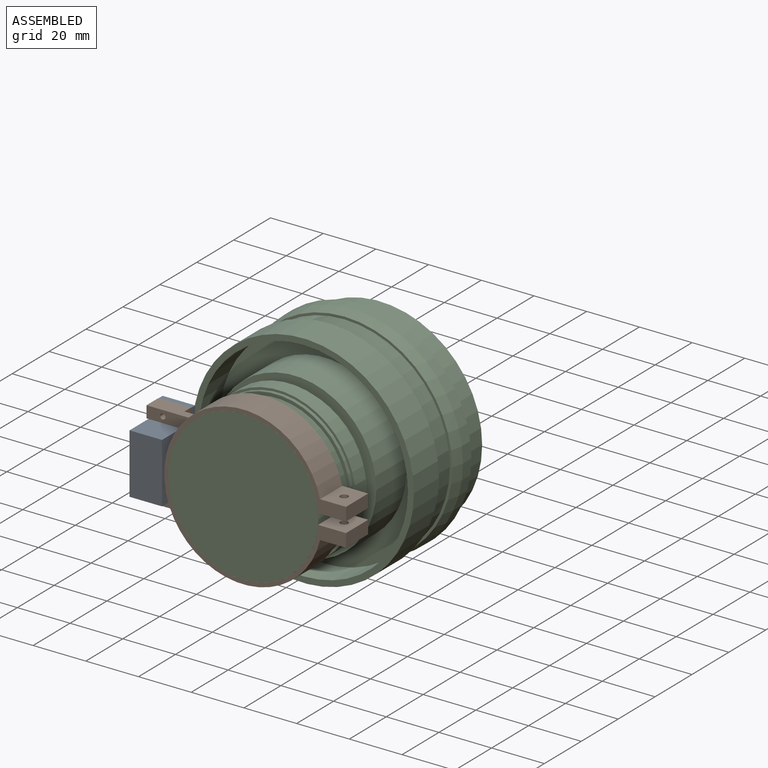
[diagram: assembled view]
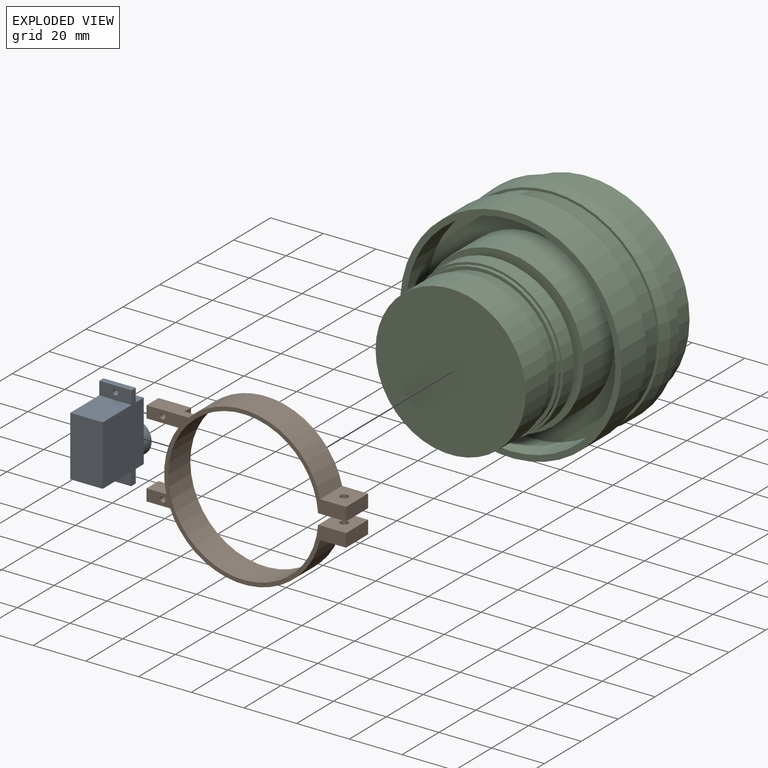
[diagram: exploded view]
GUIDED TOUR — MATED ASSEMBLY (Onshape document 4a1ec7e588569d934a6d5171, AutoMate assembly 4a1ec7e588569d934a6d5171_42fda92aca6d4c366a7ef5a7_23393d2b6d4f049c61383a13_default)

This assembly has 3 components, labeled P0..P2 below (a component is one placed occurrence of a part; the same part can appear more than once), held together by 1 mate. A mate is a constraint between two components; its type names the relative motion it leaves free:
  FASTENED — locks the two components together rigidly (no relative motion).
Axis/direction vectors are unit vectors and 'through' points are millimeter coordinates, both in the assembly's world frame.

MATES
  1. FASTENED "Fastened 1": P2 <-> P1, direction (0.000, -1.000, 0.000) through (-35.02, -70.36, -46.48) mm

ASSEMBLY ORDER
  1. P1 — the base component [order heuristic]
  2. P2 — core [order heuristic]
  3. P0 [order verified]
Order-tag legend:
  [order verified] — this step's position reverses a verified removal order: the component was checked to insert without passing through the ones already placed.
  [order heuristic] — the first 2 components form the assembly's core: parts whose collision-free extraction could not be verified, listed in mate-graph order.

Of the 3 components, 1 carries the full construction recipe — the FeatureScript program that regenerates the part's solid from scratch; the rest are supplied as boundary geometry only.
Each toured component is shown spotlighted twice — in the assembled view, then in the exploded view, where a leader line traces a displaced component back to its assembled socket (saturated green if recipe-attached, orange if geometry-only; every other component desaturated gray) — followed by its recipe or geometry summary and the mates that hold it.
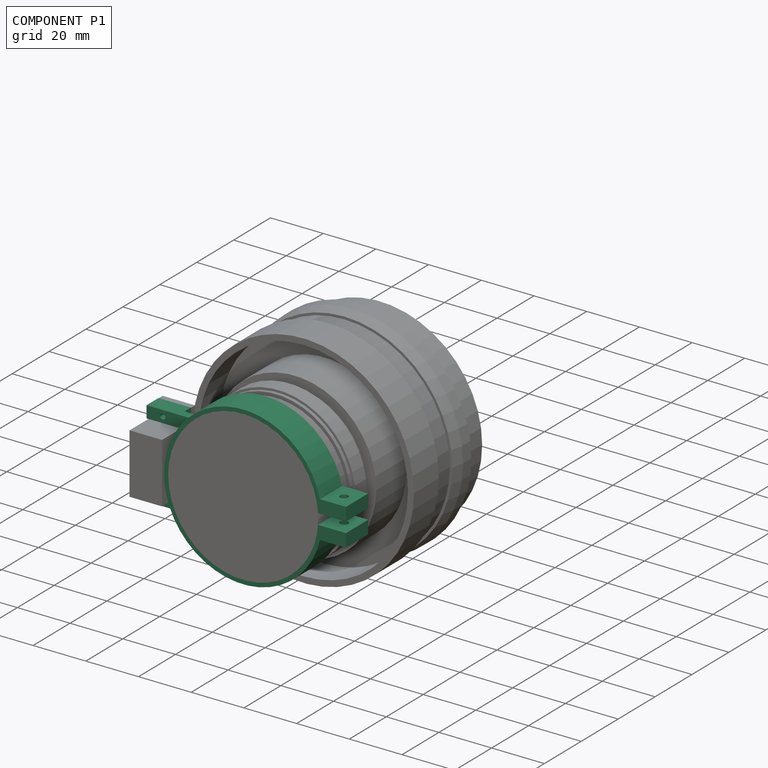
[diagram: component P1 — assembled]
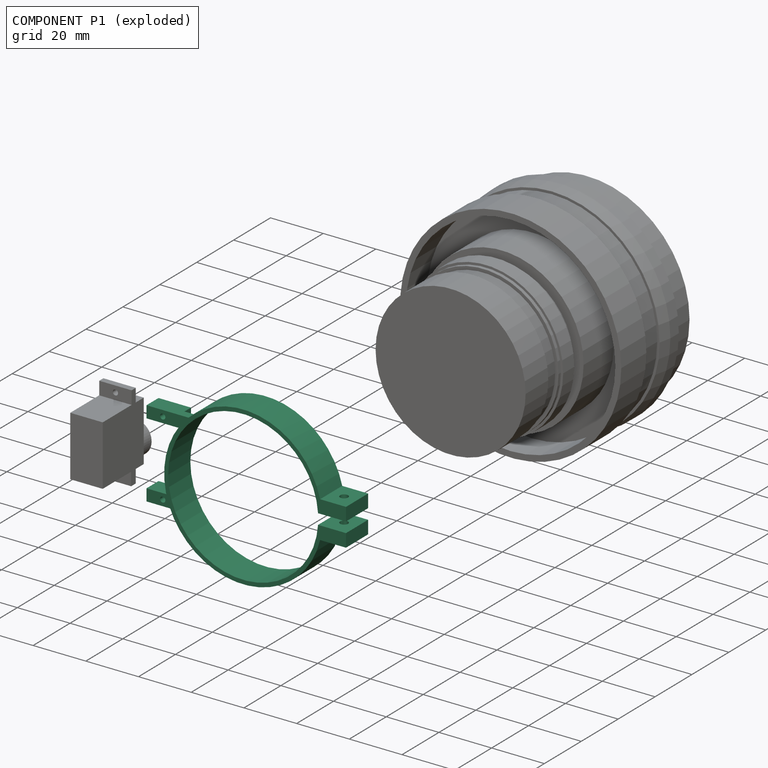
[diagram: component P1 — exploded]
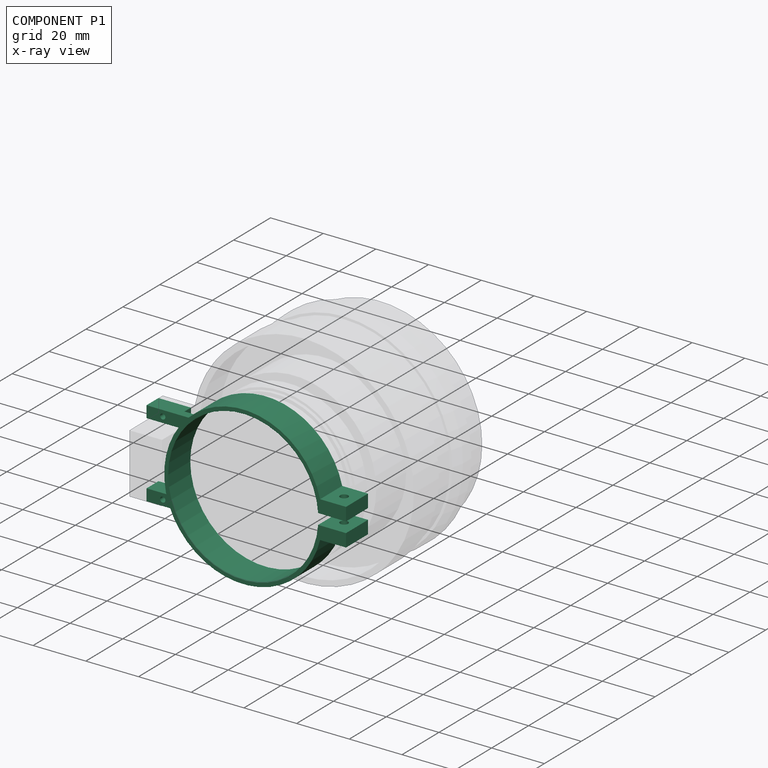
[diagram: component P1 — x-ray view]
COMPONENT P1 — recipe-attached (CADFS 00351403, mesh-verified: the recipe's output STEP matches this component's geometry to below the mesh-comparison resolution (tessellation chordal tolerance ~0.154 mm)).
Held by: FASTENED mate "Fastened 1" to P2.
Construction recipe (FeatureScript — the CAD program that rebuilds this solid; sketch coordinates are in the units given by the * unit suffixes, e.g. mm):

FeatureScript 1511;
import(path : "onshape/std/geometry.fs", version : "1511.0");
import(path : "onshape/std/common.fs", version : "1511.0");
const mm = millimeter;
const VERTEX = EntityType.VERTEX;
const EDGE = EntityType.EDGE;
const FACE = EntityType.FACE;
const BODY = EntityType.BODY;
function v(x, y){return vector(x, y);}
function OD(order){return orderDisambiguation(order);}
function OSD(set){return originalSetDisambiguation(set);}
function TD(topology){return topologyDisambiguation(topology);}
function TDD(query){return trueDependencyDisambiguation(query);}
function sQuery(a, b, c) {return sketchEntityQuery(a, b, c);}

annotation { "Feature Type Name" : "Feature", "Feature Type Description" : "" }
export const myFeature = defineFeature(function(context is Context, id is Id, definition is map)
    precondition{}
    {
        {
            var Q0;
            Q0=qCreatedBy(makeId("Front.planeOp"),FACE);
            var sketch = newSketch(context, id + "F0", { "sketchPlane" : qUnion([Q0])});
            skCircle(sketch, "E0", {"center": v(0, 0) * mm, "radius": 28.48 * mm});
            skCircle(sketch, "E1", {"center": v(0, 0) * mm, "radius": 30 * mm});
            skLineSegment(sketch, "E2", {"start": v(30, 0) * mm, "end": v(39, 0) * mm});
            skLineSegment(sketch, "E3", {"start": v(39, 0) * mm, "end": v(39, -7) * mm});
            skLineSegment(sketch, "E4", {"start": v(39, -7) * mm, "end": v(29.17, -7) * mm});
            skLineSegment(sketch, "E5", {"start": v(39, 0) * mm, "end": v(39, 7) * mm});
            skLineSegment(sketch, "E6", {"start": v(39, 7) * mm, "end": v(29.17, 7) * mm});
            skSolve(sketch);
        }
        {
            var Q0;
            Q0 = qSketchRegion(id + "F0", true);
            extrude(context, id + "F1", {"entities" : qUnion([Q0]), "depth" : 12 * mm});
        }
        {
            var Q0;
            Q0=makeQuery(id+"F1.opExtrude","CAP_FACE",FACE,{"disambiguationData":[OSD([sQuery(id+"F0.wireOp",EDGE,"E0"),sQuery(id+"F0.wireOp",EDGE,"E1"),sQuery(id+"F0.wireOp",EDGE,"E3"),sQuery(id+"F0.wireOp",EDGE,"E4"),sQuery(id+"F0.wireOp",EDGE,"E5"),sQuery(id+"F0.wireOp",EDGE,"E6")])],"isStart":false});
            var sketch = newSketch(context, id + "F2", { "sketchPlane" : qUnion([Q0])});
            skLineSegment(sketch, "E7.bottom", {"start": v(44.15, 2) * mm, "end": v(24.16, 2) * mm});
            skLineSegment(sketch, "E7.top", {"start": v(44.15, -2) * mm, "end": v(24.16, -2) * mm});
            skLineSegment(sketch, "E7.left", {"start": v(44.15, 2) * mm, "end": v(44.15, -2) * mm});
            skLineSegment(sketch, "E7.right", {"start": v(24.16, 2) * mm, "end": v(24.16, -2) * mm});
            skPoint(sketch, "E7.middle", {"position": v(34.16, 0) * mm});
            skSolve(sketch);
        }
        {
            var Q0;
            Q0 = qSketchRegion(id + "F2", true);
            extrude(context, id + "F3", {"entities" : qUnion([Q0]), "operationType" : NewBodyOperationType.REMOVE, "oppositeDirection" : true, "depth" : 25 * mm});
        }
        {
            var Q0;
            Q0=makeQuery(id+"F1.opExtrude","SWEPT_FACE",FACE,{"disambiguationData":[OSD([sQuery(id+"F0.wireOp",EDGE,"E4")])]});
            var sketch = newSketch(context, id + "F4", { "sketchPlane" : qUnion([Q0])});
            skLineSegment(sketch, "E8", {"start": v(39, 12) * mm, "end": v(39, 0) * mm, "construction": true});
            skLineSegment(sketch, "E9", {"start": v(39, 0) * mm, "end": v(29.17, 0) * mm, "construction": true});
            skLineSegment(sketch, "E10", {"start": v(29.17, 0) * mm, "end": v(29.17, 12) * mm, "construction": true});
            skLineSegment(sketch, "E11", {"start": v(29.17, 12) * mm, "end": v(39, 12) * mm, "construction": true});
            skLineSegment(sketch, "E12", {"start": v(39, 12) * mm, "end": v(29.17, 0) * mm, "construction": true});
            skLineSegment(sketch, "E13", {"start": v(29.17, 12) * mm, "end": v(39, 0) * mm, "construction": true});
            skCircle(sketch, "E14", {"center": v(34.09, 6) * mm, "radius": 1.5 * mm});
            skSolve(sketch);
        }
        {
            var Q0;
            Q0 = qSketchRegion(id + "F4", true);
            extrude(context, id + "F5", {"entities" : qUnion([Q0]), "operationType" : NewBodyOperationType.REMOVE, "oppositeDirection" : true, "depth" : 25 * mm});
        }
        {
            var Q0;
            Q0=makeQuery(id+"F1.opExtrude","CAP_FACE",FACE,{"disambiguationData":[OSD([sQuery(id+"F0.wireOp",EDGE,"E0"),sQuery(id+"F0.wireOp",EDGE,"E1"),sQuery(id+"F0.wireOp",EDGE,"E3"),sQuery(id+"F0.wireOp",EDGE,"E4"),sQuery(id+"F0.wireOp",EDGE,"E5"),sQuery(id+"F0.wireOp",EDGE,"E6")])],"isStart":false});
            var sketch = newSketch(context, id + "F6", { "sketchPlane" : qUnion([Q0])});
            skLineSegment(sketch, "E15", {"start": v(-30, 0) * mm, "end": v(-43, 0) * mm});
            skPoint(sketch, "E15.endSnap0", {"position": v(-30, 0) * mm});
            skLineSegment(sketch, "E16", {"start": v(-43, 0) * mm, "end": v(-43, 16.5) * mm});
            skLineSegment(sketch, "E17", {"start": v(-43, 16.5) * mm, "end": v(-25.05, 16.5) * mm});
            skLineSegment(sketch, "E18", {"start": v(-25.05, 16.5) * mm, "end": v(-43, 16.5) * mm});
            skLineSegment(sketch, "E19", {"start": v(-43, 0) * mm, "end": v(-43, -16.5) * mm});
            skLineSegment(sketch, "E20", {"start": v(-43, -16.5) * mm, "end": v(-25.05, -16.5) * mm});
            skLineSegment(sketch, "E21", {"start": v(-25.05, 16.5) * mm, "end": v(-23.2, 16.5) * mm});
            skLineSegment(sketch, "E22", {"start": v(-25.05, -16.5) * mm, "end": v(-23.2, -16.5) * mm});
            skArc(sketch, "E23", {"start": v(-23.2, 16.5) * mm, "mid": v(-28.6, 0) * mm, "end": v(-23.2, -16.5) * mm});
            skSolve(sketch);
        }
        {
            var Q0;
            Q0 = qSketchRegion(id + "F6", true);
            extrude(context, id + "F7", {"entities" : qUnion([Q0]), "operationType" : NewBodyOperationType.ADD, "oppositeDirection" : true, "depth" : 3 * mm});
        }
        {
            var Q0;
            Q0=makeQuery(id+"F7.boolean.opBoolean","MERGE",FACE,{"derivedFrom":[makeQuery(id+"F1.opExtrude","CAP_FACE",FACE,{"disambiguationData":[OSD([sQuery(id+"F0.wireOp",EDGE,"E0"),sQuery(id+"F0.wireOp",EDGE,"E1"),sQuery(id+"F0.wireOp",EDGE,"E3"),sQuery(id+"F0.wireOp",EDGE,"E4"),sQuery(id+"F0.wireOp",EDGE,"E5"),sQuery(id+"F0.wireOp",EDGE,"E6")])],"isStart":false}),makeQuery(id+"F7.opExtrude","CAP_FACE",FACE,{"disambiguationData":[OSD([sQuery(id+"F6.wireOp",EDGE,"E16"),sQuery(id+"F6.wireOp",EDGE,"E18"),sQuery(id+"F6.wireOp",EDGE,"E19"),sQuery(id+"F6.wireOp",EDGE,"E20"),sQuery(id+"F6.wireOp",EDGE,"E21"),sQuery(id+"F6.wireOp",EDGE,"E22"),sQuery(id+"F6.wireOp",EDGE,"E23")])],"isStart":true})]});
            var sketch = newSketch(context, id + "F8", { "sketchPlane" : qUnion([Q0])});
            skLineSegment(sketch, "E24.bottom", {"start": v(-43, 16.5) * mm, "end": v(-30.69, 16.5) * mm});
            skLineSegment(sketch, "E24.top", {"start": v(-43, 12) * mm, "end": v(-30.69, 12) * mm});
            skLineSegment(sketch, "E24.left", {"start": v(-43, 16.5) * mm, "end": v(-43, 12) * mm});
            skLineSegment(sketch, "E24.right", {"start": v(-30.69, 16.5) * mm, "end": v(-30.69, 12) * mm});
            skLineSegment(sketch, "E25.bottom", {"start": v(-43, -16.5) * mm, "end": v(-30.69, -16.5) * mm});
            skLineSegment(sketch, "E25.top", {"start": v(-43, -12) * mm, "end": v(-30.69, -12) * mm});
            skLineSegment(sketch, "E25.left", {"start": v(-43, -16.5) * mm, "end": v(-43, -12) * mm});
            skLineSegment(sketch, "E25.right", {"start": v(-30.69, -16.5) * mm, "end": v(-30.69, -12) * mm});
            skSolve(sketch);
        }
        {
            var Q0;
            Q0 = qSketchRegion(id + "F8", true);
            extrude(context, id + "F9", {"entities" : qUnion([Q0]), "operationType" : NewBodyOperationType.ADD, "depth" : 3.5 * mm});
        }
        {
            var Q0;
            Q0=makeQuery(id+"F7.boolean.opBoolean","MERGE",FACE,{"derivedFrom":[makeQuery(id+"F1.opExtrude","CAP_FACE",FACE,{"disambiguationData":[OSD([sQuery(id+"F0.wireOp",EDGE,"E0"),sQuery(id+"F0.wireOp",EDGE,"E1"),sQuery(id+"F0.wireOp",EDGE,"E3"),sQuery(id+"F0.wireOp",EDGE,"E4"),sQuery(id+"F0.wireOp",EDGE,"E5"),sQuery(id+"F0.wireOp",EDGE,"E6")])],"isStart":false}),makeQuery(id+"F7.opExtrude","CAP_FACE",FACE,{"disambiguationData":[OSD([sQuery(id+"F6.wireOp",EDGE,"E16"),sQuery(id+"F6.wireOp",EDGE,"E18"),sQuery(id+"F6.wireOp",EDGE,"E19"),sQuery(id+"F6.wireOp",EDGE,"E20"),sQuery(id+"F6.wireOp",EDGE,"E21"),sQuery(id+"F6.wireOp",EDGE,"E22"),sQuery(id+"F6.wireOp",EDGE,"E23")])],"isStart":true})]});
            var sketch = newSketch(context, id + "F10", { "sketchPlane" : qUnion([Q0])});
            skLineSegment(sketch, "E26.bottom", {"start": v(-43, 12) * mm, "end": v(-30.69, 12) * mm});
            skLineSegment(sketch, "E26.top", {"start": v(-43, -12) * mm, "end": v(-30.69, -12) * mm});
            skLineSegment(sketch, "E26.left", {"start": v(-43, 12) * mm, "end": v(-43, -12) * mm});
            skLineSegment(sketch, "E26.right", {"start": v(-30.69, 12) * mm, "end": v(-30.69, -12) * mm});
            skSolve(sketch);
        }
        {
            var Q0;
            Q0 = qSketchRegion(id + "F10", true);
            extrude(context, id + "F11", {"entities" : qUnion([Q0]), "operationType" : NewBodyOperationType.REMOVE, "oppositeDirection" : true, "depth" : 25 * mm});
        }
        {
            var Q0;
            Q0=makeQuery(id+"F7.opExtrude","CAP_FACE",FACE,{"disambiguationData":[OSD([sQuery(id+"F6.wireOp",EDGE,"E16"),sQuery(id+"F6.wireOp",EDGE,"E18"),sQuery(id+"F6.wireOp",EDGE,"E19"),sQuery(id+"F6.wireOp",EDGE,"E20"),sQuery(id+"F6.wireOp",EDGE,"E21"),sQuery(id+"F6.wireOp",EDGE,"E22"),sQuery(id+"F6.wireOp",EDGE,"E23")])],"isStart":false});
            var sketch = newSketch(context, id + "F12", { "sketchPlane" : qUnion([Q0])});
            skLineSegment(sketch, "E27", {"start": v(30.69, 12) * mm, "end": v(43, 16.5) * mm, "construction": true});
            skLineSegment(sketch, "E28", {"start": v(43, 16.5) * mm, "end": v(43, 12) * mm, "construction": true});
            skLineSegment(sketch, "E29", {"start": v(43, 12) * mm, "end": v(30.69, 16.5) * mm, "construction": true});
            skLineSegment(sketch, "E30", {"start": v(30.69, 16.5) * mm, "end": v(30.69, -16.5) * mm, "construction": true});
            skLineSegment(sketch, "E31", {"start": v(30.69, -16.5) * mm, "end": v(43, -12) * mm, "construction": true});
            skLineSegment(sketch, "E32", {"start": v(43, -12) * mm, "end": v(43, -16.5) * mm, "construction": true});
            skLineSegment(sketch, "E33", {"start": v(43, -16.5) * mm, "end": v(30.69, -12) * mm, "construction": true});
            skCircle(sketch, "E34", {"center": v(36.84, 14.25) * mm, "radius": 1 * mm});
            skCircle(sketch, "E35", {"center": v(36.84, -14.25) * mm, "radius": 1 * mm});
            skSolve(sketch);
        }
        {
            var Q0;
            Q0 = qSketchRegion(id + "F12", true);
            extrude(context, id + "F13", {"entities" : qUnion([Q0]), "operationType" : NewBodyOperationType.REMOVE, "oppositeDirection" : true, "depth" : 25 * mm});
        }
    });
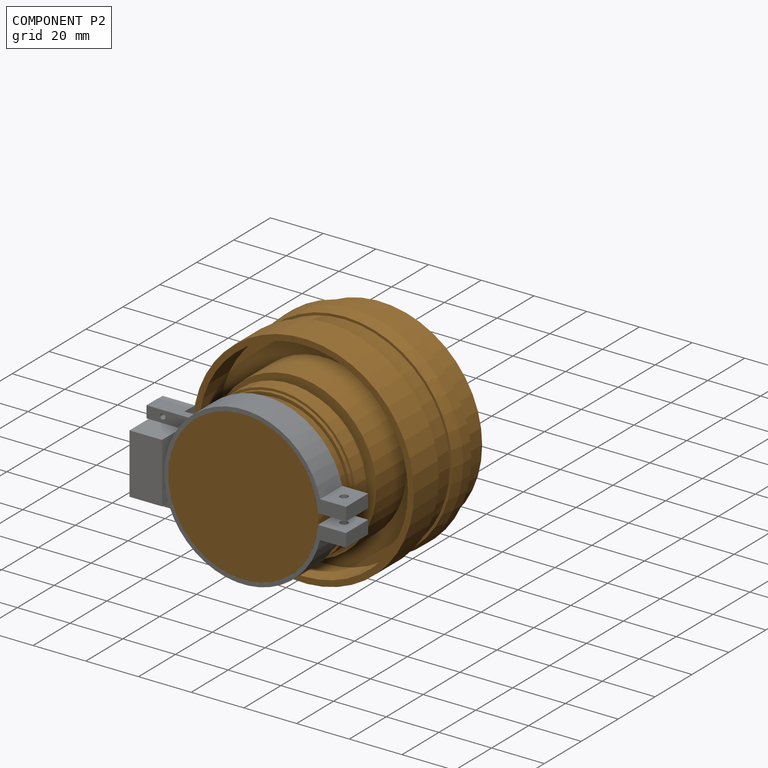
[diagram: component P2 — assembled]
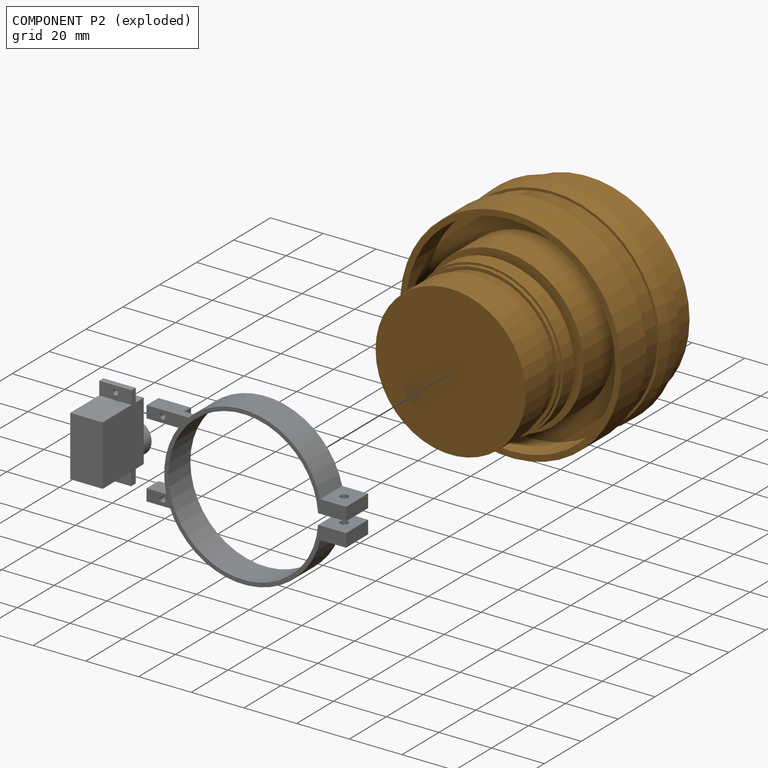
[diagram: component P2 — exploded]
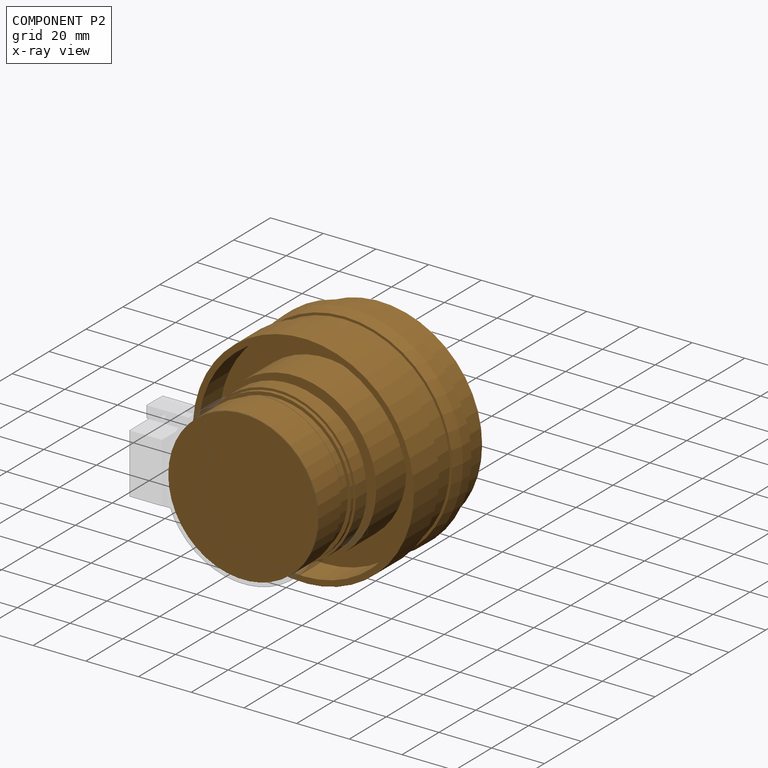
[diagram: component P2 — x-ray view]
COMPONENT P2 — geometry summary (no construction recipe available for this part):
  bounding box: 83.9 x 83.9 x 74.0 mm
  B-rep topology: 1 solid, 26 faces, 76 edges
  volume: 254217 mm^3 (49% of its bounding box)
  symmetry: revolution-symmetric about the y axis through its bounding-box center; mirror-symmetric across its x mid-plane, z mid-plane
Held by: FASTENED mate "Fastened 1" to P1.
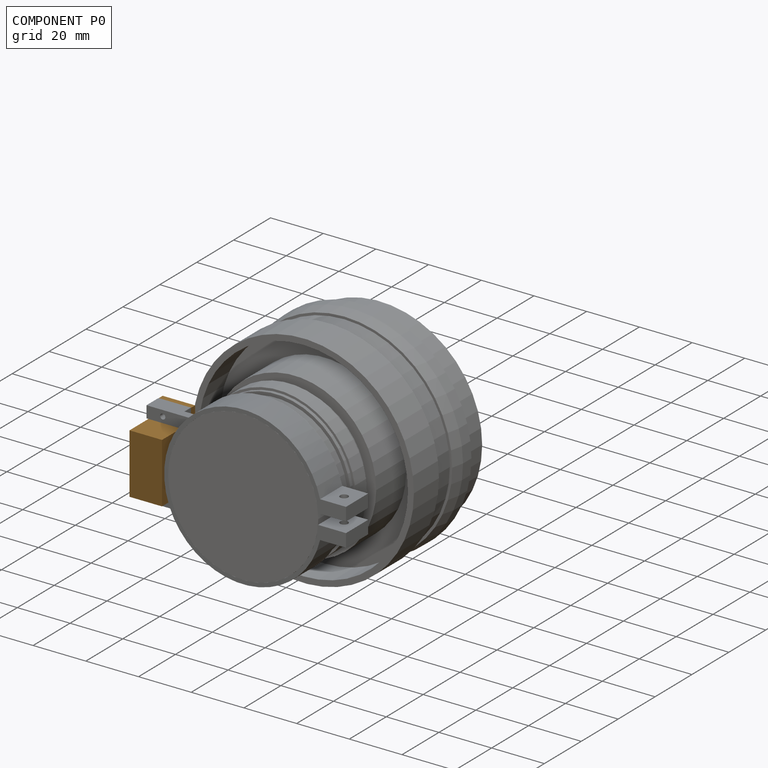
[diagram: component P0 — assembled]
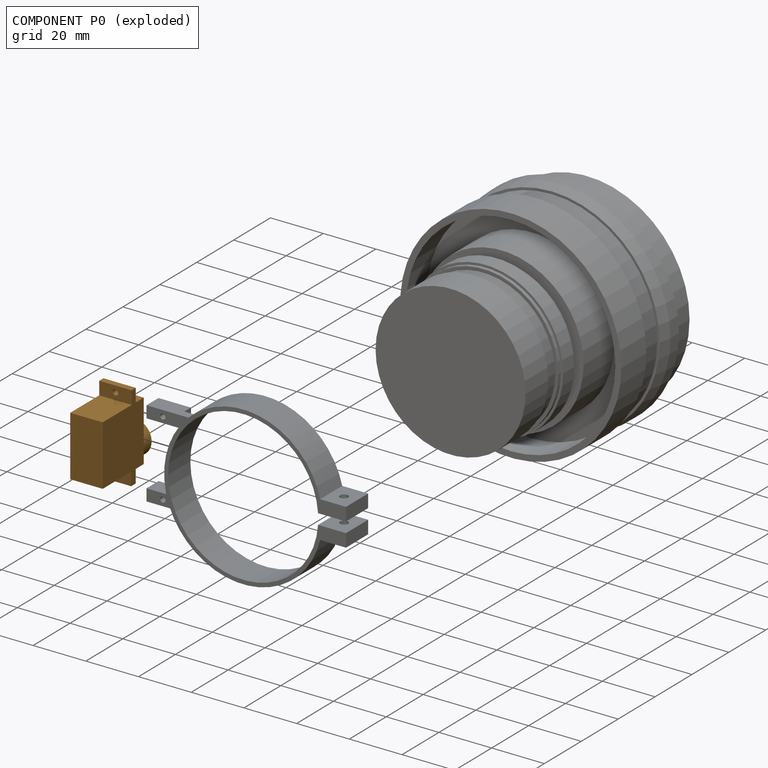
[diagram: component P0 — exploded]
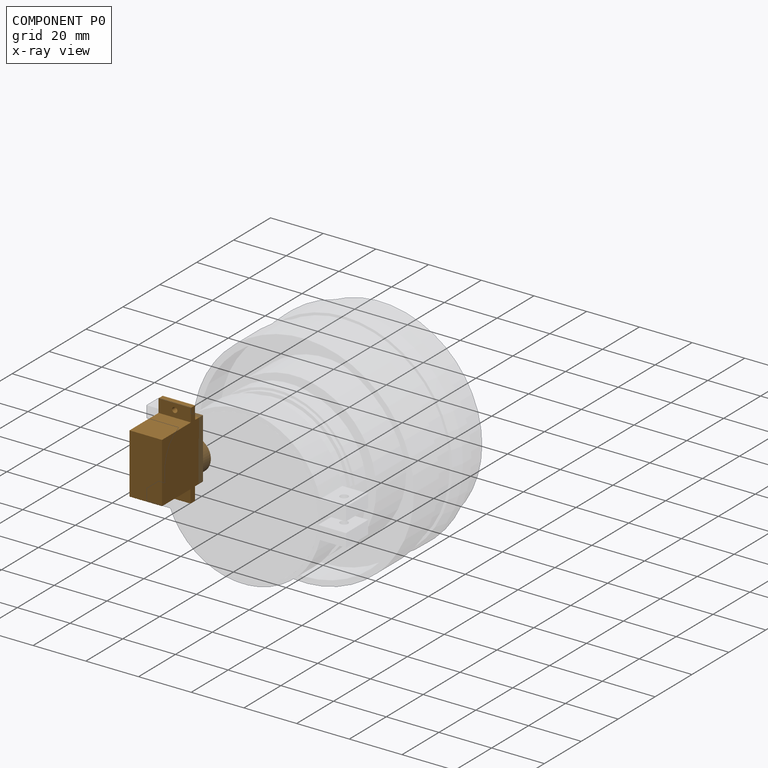
[diagram: component P0 — x-ray view]
COMPONENT P0 — geometry summary (no construction recipe available for this part):
  bounding box: 32.8 x 29.2 x 12.3 mm
  B-rep topology: 1 solid, 23 faces, 118 edges
  volume: 7114 mm^3 (60% of its bounding box)
  symmetry: mirror-symmetric across its z mid-plane
Held by: no mates (free).
PROVENANCE & LICENSES
Assembly (occurrences, transforms, mates, per-part STEP geometry): AutoMate dataset, Zenodo record 7776208, CC0.
Construction recipes: CADFS (HuggingFace VladPyatov/CADFS, CC-BY-4.0, layered over the ABC dataset), FeatureScript reconstruction programs keyed by ABC model id.
Join: ABC meta listings map ABC model id -> Onshape documentId; within a shared document, parts are matched by geometric signature (bounding-box dims + volume at 0.1% relative tolerance, exact B-rep face/solid counts).
Verification: 1 of this assembly's 3 components carries a recipe attachment, and every attachment is mesh-verified: the CADFS STEP and the AutoMate member STEP were compared as meshes in their shared local frame (symmetric sampled-point-to-mesh distance); worst across the 1 attachment: below the mesh-comparison resolution (tessellation chordal tolerance ~0.154 mm) on a 103 mm part.
Renders: orthographic iso camera (az 35 / el 25); the floor grid conveys scale (grid pitch printed in each image; no ruler). In the exploded view each component is displaced by its stored offset vector: the offsets alone carry the explosion direction (mate normal/axis signs are not orientation cues and do not encode it), and separation distances are assigned per mate-chain, not proportionally to assembly-order depth.
